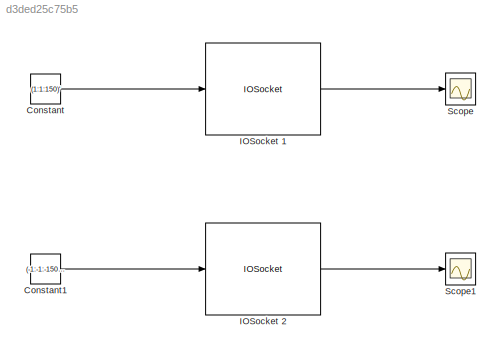
MODEL slx_d3ded25c75b5
KIND model
CONFIG AbsTol = auto
CONFIG EnableMultiTasking = off
CONFIG FixedStep = auto
CONFIG MaxStep = auto
CONFIG MinStep = auto
CONFIG RelTol = 1e-3
CONFIG SampleTimeConstraint = Unconstrained
CONFIG SolverName = FixedStepDiscrete
CONFIG StartTime = 0.0
CONFIG StopTime = Inf
BLOCK [Constant] Constant
  SampleTime = 0.05
  Value = (1:1:150)'
BLOCK [Constant] Constant1
  SampleTime = 0.05
  Value = (-1:-1:-150)'
BLOCK [Reference] IOSocket 1  REF=rpi_blkst/IOSocket  (lib defined in mdl_5f9edbe601a8, slx_830431f926a7)
  Ports = [1, 1]
  SourceBlock = rpi_blkst/IOSocket
  SourceProductName = RPI Blockset
  SourceType = IOSocket
BLOCK [Reference] IOSocket 2  REF=rpi_blkst/IOSocket  (lib defined in mdl_5f9edbe601a8, slx_830431f926a7)
  Ports = [1, 1]
  SourceBlock = rpi_blkst/IOSocket
  SourceProductName = RPI Blockset
  SourceType = IOSocket
BLOCK [Scope] Scope
  Floating = off
  NumInputPorts = 1
  Ports = [1]
  ScopeSpecificationString = Simulink.scopes.TimeScopeBlockCfg('CurrentConfiguration', extmgr.ConfigurationSet(extmgr.Configuration('Core','General UI',true),extmgr.Configuration('Core','Source UI',true),extmgr.Configuration('Sources','WiredSimulink',true),extmgr.Configuration('Visuals','Time Domain',true),extmgr.Configuration('Tools','Plot Navigation',true),extmgr.Configuration('Tools','Measurements',true)),'Version','2020b'...<+1ch>
BLOCK [Scope] Scope1
  Floating = off
  NumInputPorts = 1
  Ports = [1]
  ScopeSpecificationString = Simulink.scopes.TimeScopeBlockCfg('CurrentConfiguration', extmgr.ConfigurationSet(extmgr.Configuration('Core','General UI',true),extmgr.Configuration('Core','Source UI',true),extmgr.Configuration('Sources','WiredSimulink',true,'DataLoggingVariableName','ScopeData1'),extmgr.Configuration('Visuals','Time Domain',true),extmgr.Configuration('Tools','Plot Navigation',true),extmgr.Configuration('Tools',...<+40ch>
LINE Constant1:1 -> IOSocket 2:1
LINE Constant:1 -> IOSocket 1:1
LINE IOSocket 1:1 -> Scope:1
LINE IOSocket 2:1 -> Scope1:1
